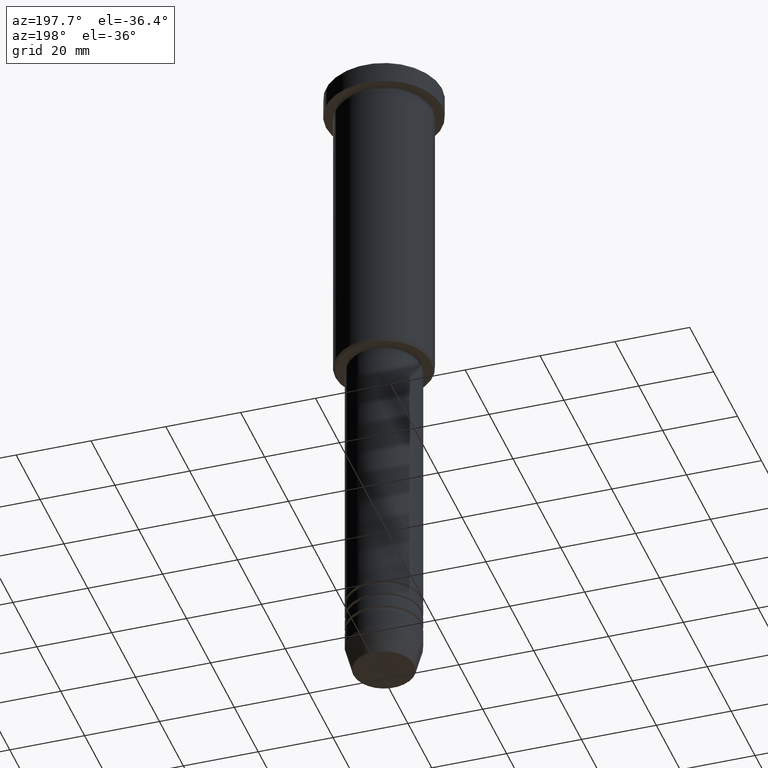
[diagram: clean part render]
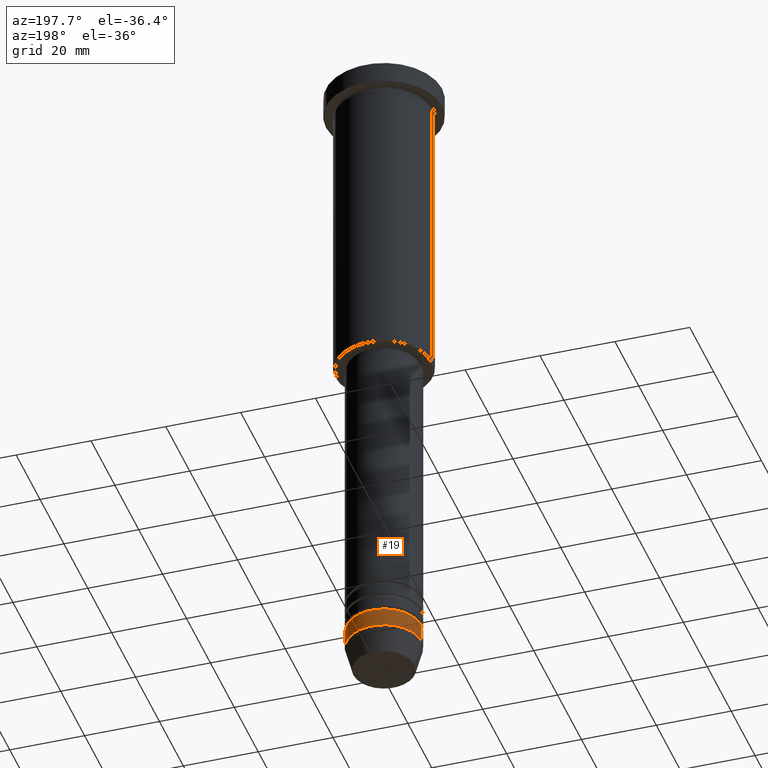
[diagram: same view with one face highlighted and labeled with its STEP entity id]
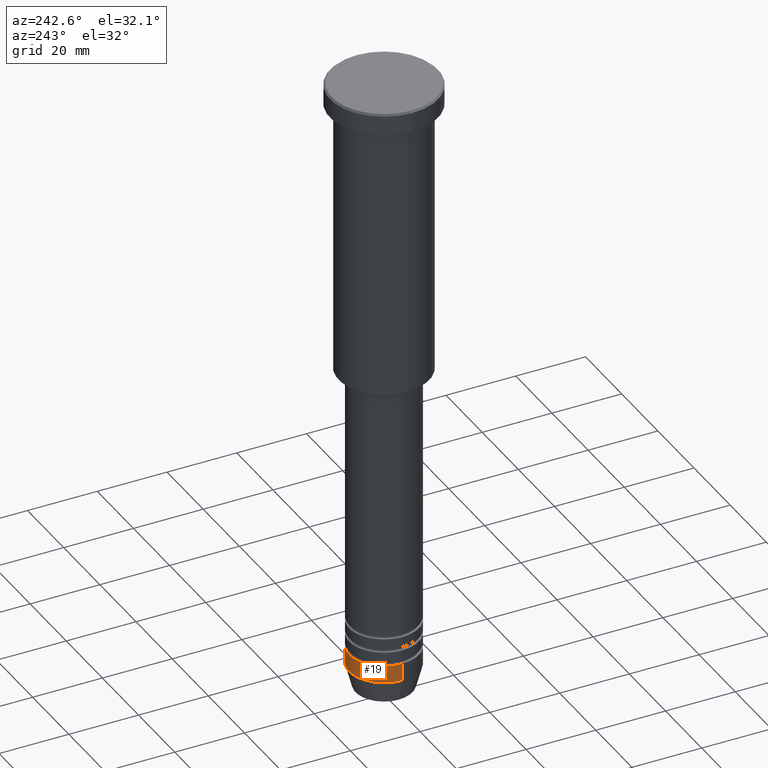
[diagram: same view with one face highlighted and labeled with its STEP entity id]
A machine part, auxiliary view. The second image highlights one B-rep face of the part: STEP entity #19.
A second angle (auxiliary view) of the same face is appended — the face is thin or edge-on in the first view.
In plain terms, the highlighted cylindrical surface (partial cylindrical patch) has radius 10 mm, axis along (-0, -0, 1).
Its self-contained STEP definition (entity closure, byte-faithful):
#4 = ORIENTED_EDGE ( 'NONE', *, *, #604, .T. ) ;
#17 = VERTEX_POINT ( 'NONE', #304 ) ;
#19 = ADVANCED_FACE ( 'NONE', ( #1159 ), #1060, .T. ) ;
#54 = AXIS2_PLACEMENT_3D ( 'NONE', #956, #608, #414 ) ;
#96 = ORIENTED_EDGE ( 'NONE', *, *, #832, .F. ) ;
#112 = EDGE_LOOP ( 'NONE', ( #4, #1095, #1074, #96 ) ) ;
#114 = CARTESIAN_POINT ( 'NONE',  ( 10.00000000000000000, 0.000000000000000000, -168.9999999999999716 ) ) ;
#194 = LINE ( 'NONE', #319, #689 ) ;
#199 = CARTESIAN_POINT ( 'NONE',  ( 10.00000000000000000, 0.000000000000000000, 0.000000000000000000 ) ) ;
#241 = DIRECTION ( 'NONE',  ( -0.000000000000000000, -0.000000000000000000, 1.000000000000000000 ) ) ;
#299 = CARTESIAN_POINT ( 'NONE',  ( -10.00000000000000000, 1.224646799147353256E-15, -174.0000000000000000 ) ) ;
#304 = CARTESIAN_POINT ( 'NONE',  ( -10.00000000000000000, 1.224646799147353256E-15, -168.9999999999999716 ) ) ;
#319 = CARTESIAN_POINT ( 'NONE',  ( -10.00000000000000000, 1.224646799147353256E-15, 0.000000000000000000 ) ) ;
#414 = DIRECTION ( 'NONE',  ( 1.000000000000000000, 0.000000000000000000, 0.000000000000000000 ) ) ;
#477 = AXIS2_PLACEMENT_3D ( 'NONE', #809, #822, #540 ) ;
#515 = DIRECTION ( 'NONE',  ( -0.000000000000000000, -0.000000000000000000, 1.000000000000000000 ) ) ;
#540 = DIRECTION ( 'NONE',  ( 1.000000000000000000, 0.000000000000000000, 0.000000000000000000 ) ) ;
#604 = EDGE_CURVE ( 'NONE', #625, #1129, #1136, .T. ) ;
#608 = DIRECTION ( 'NONE',  ( -0.000000000000000000, -0.000000000000000000, 1.000000000000000000 ) ) ;
#625 = VERTEX_POINT ( 'NONE', #638 ) ;
#638 = CARTESIAN_POINT ( 'NONE',  ( 10.00000000000000000, 0.000000000000000000, -174.0000000000000000 ) ) ;
#689 = VECTOR ( 'NONE', #241, 1000.000000000000000 ) ;
#809 = CARTESIAN_POINT ( 'NONE',  ( 0.000000000000000000, 0.000000000000000000, -174.0000000000000000 ) ) ;
#822 = DIRECTION ( 'NONE',  ( -0.000000000000000000, -0.000000000000000000, 1.000000000000000000 ) ) ;
#832 = EDGE_CURVE ( 'NONE', #625, #843, #853, .T. ) ;
#836 = AXIS2_PLACEMENT_3D ( 'NONE', #977, #515, #971 ) ;
#843 = VERTEX_POINT ( 'NONE', #114 ) ;
#853 = LINE ( 'NONE', #199, #942 ) ;
#868 = EDGE_CURVE ( 'NONE', #1129, #17, #194, .T. ) ;
#942 = VECTOR ( 'NONE', #1114, 1000.000000000000000 ) ;
#956 = CARTESIAN_POINT ( 'NONE',  ( 0.000000000000000000, 0.000000000000000000, -168.9999999999999716 ) ) ;
#971 = DIRECTION ( 'NONE',  ( 1.000000000000000000, 0.000000000000000000, 0.000000000000000000 ) ) ;
#977 = CARTESIAN_POINT ( 'NONE',  ( 0.000000000000000000, 0.000000000000000000, 0.000000000000000000 ) ) ;
#1060 = CYLINDRICAL_SURFACE ( 'NONE', #836, 10.00000000000000000 ) ;
#1074 = ORIENTED_EDGE ( 'NONE', *, *, #1167, .F. ) ;
#1089 = CIRCLE ( 'NONE', #54, 10.00000000000000000 ) ;
#1095 = ORIENTED_EDGE ( 'NONE', *, *, #868, .T. ) ;
#1114 = DIRECTION ( 'NONE',  ( -0.000000000000000000, -0.000000000000000000, 1.000000000000000000 ) ) ;
#1129 = VERTEX_POINT ( 'NONE', #299 ) ;
#1136 = CIRCLE ( 'NONE', #477, 10.00000000000000000 ) ;
#1159 = FACE_OUTER_BOUND ( 'NONE', #112, .T. ) ;
#1167 = EDGE_CURVE ( 'NONE', #843, #17, #1089, .T. ) ;